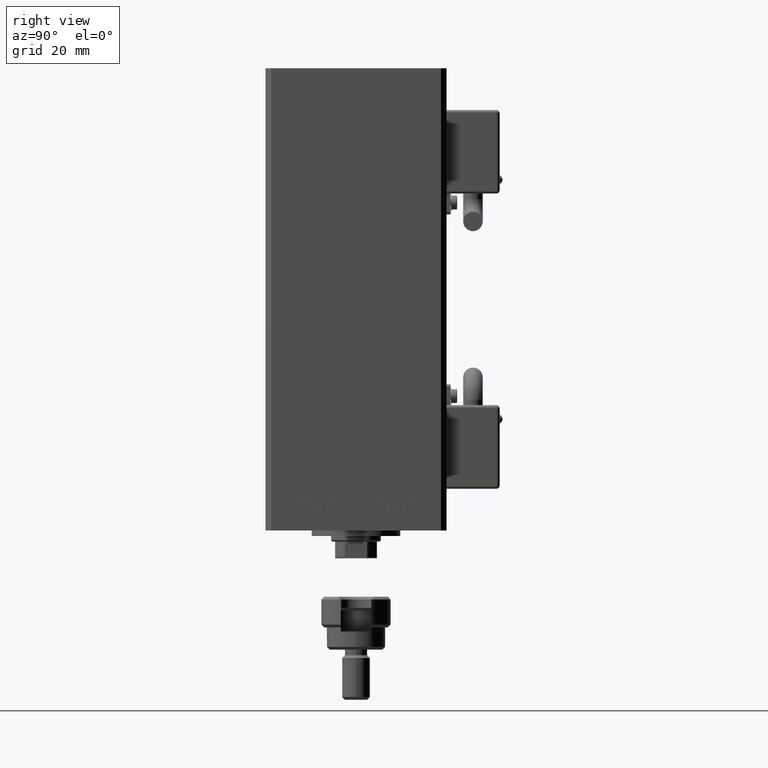
[diagram: clean part render]
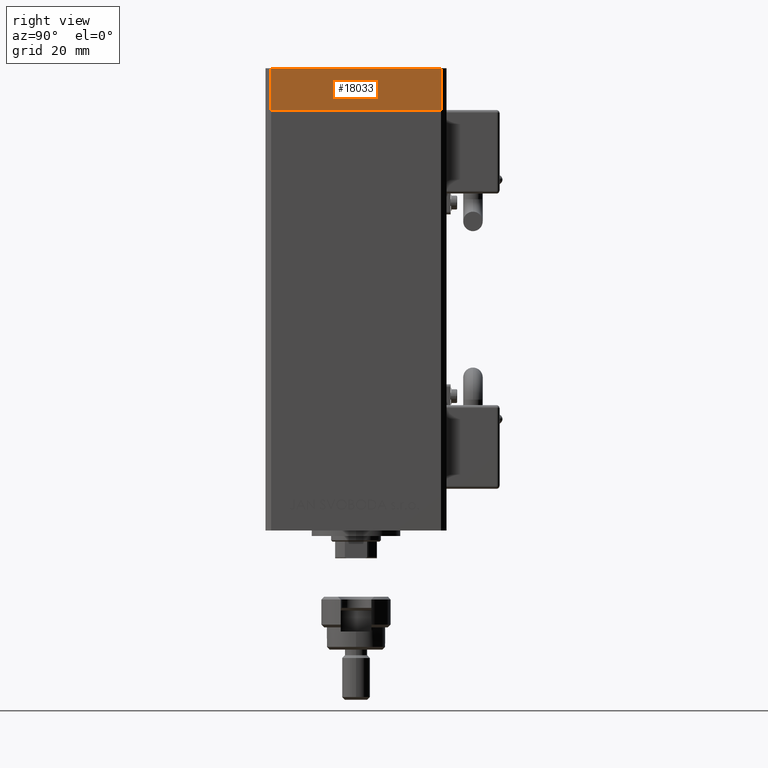
[diagram: same view with one face highlighted and labeled with its STEP entity id]
A machine part, right view. The second image highlights one B-rep face of the part: STEP entity #18033.
In plain terms, the highlighted planar face has unit normal (1, 0, 0).
Its self-contained STEP definition (entity closure, byte-faithful):
#913 = EDGE_CURVE ( 'NONE', #22626, #6738, #15562, .T. ) ;
#1342 = CARTESIAN_POINT ( 'NONE',  ( 37.50000000000001421, -30.50000000000000711, -15.00000000000000000 ) ) ;
#2000 = VECTOR ( 'NONE', #25358, 1000.000000000000000 ) ;
#3543 = VERTEX_POINT ( 'NONE', #5046 ) ;
#3774 = DIRECTION ( 'NONE',  ( 0.000000000000000000, 0.000000000000000000, 1.000000000000000000 ) ) ;
#4685 = AXIS2_PLACEMENT_3D ( 'NONE', #17022, #25193, #33341 ) ;
#4941 = ORIENTED_EDGE ( 'NONE', *, *, #32210, .T. ) ;
#5046 = CARTESIAN_POINT ( 'NONE',  ( 37.50000000000001421, -30.50000000000000711, -15.00000000000000000 ) ) ;
#5715 = LINE ( 'NONE', #21277, #2000 ) ;
#5753 = CARTESIAN_POINT ( 'NONE',  ( 37.49999999999992184, 30.50000000000001066, -15.00000000000000000 ) ) ;
#6738 = VERTEX_POINT ( 'NONE', #39645 ) ;
#6744 = EDGE_LOOP ( 'NONE', ( #35408, #22100, #21860, #4941 ) ) ;
#7689 = CARTESIAN_POINT ( 'NONE',  ( 37.50000000000001421, -30.50000000000000711, 0.000000000000000000 ) ) ;
#12852 = VECTOR ( 'NONE', #34554, 1000.000000000000000 ) ;
#15562 = LINE ( 'NONE', #39772, #20707 ) ;
#16586 = CARTESIAN_POINT ( 'NONE',  ( 37.50000000000001421, -30.50000000000000711, -15.00000000000000000 ) ) ;
#17022 = CARTESIAN_POINT ( 'NONE',  ( 37.50000000000001421, -30.50000000000000711, -15.00000000000000000 ) ) ;
#18033 = ADVANCED_FACE ( 'NONE', ( #45589 ), #50483, .T. ) ;
#20707 = VECTOR ( 'NONE', #52314, 1000.000000000000000 ) ;
#21277 = CARTESIAN_POINT ( 'NONE',  ( 37.49999999999992184, 30.50000000000001066, -15.00000000000000000 ) ) ;
#21860 = ORIENTED_EDGE ( 'NONE', *, *, #45400, .T. ) ;
#22100 = ORIENTED_EDGE ( 'NONE', *, *, #41120, .F. ) ;
#22626 = VERTEX_POINT ( 'NONE', #7689 ) ;
#23124 = VECTOR ( 'NONE', #3774, 1000.000000000000000 ) ;
#25193 = DIRECTION ( 'NONE',  ( 1.000000000000000000, 1.478780668045803018E-15, -0.000000000000000000 ) ) ;
#25358 = DIRECTION ( 'NONE',  ( 0.000000000000000000, 0.000000000000000000, 1.000000000000000000 ) ) ;
#32210 = EDGE_CURVE ( 'NONE', #39774, #6738, #5715, .T. ) ;
#33341 = DIRECTION ( 'NONE',  ( -1.478780668045803018E-15, 1.000000000000000000, 0.000000000000000000 ) ) ;
#34554 = DIRECTION ( 'NONE',  ( -1.478780668045802821E-15, 1.000000000000000000, 0.000000000000000000 ) ) ;
#35408 = ORIENTED_EDGE ( 'NONE', *, *, #913, .F. ) ;
#39645 = CARTESIAN_POINT ( 'NONE',  ( 37.49999999999992184, 30.50000000000001066, 0.000000000000000000 ) ) ;
#39772 = CARTESIAN_POINT ( 'NONE',  ( 37.50000000000001421, -30.50000000000000711, 0.000000000000000000 ) ) ;
#39774 = VERTEX_POINT ( 'NONE', #5753 ) ;
#41120 = EDGE_CURVE ( 'NONE', #3543, #22626, #49234, .T. ) ;
#45400 = EDGE_CURVE ( 'NONE', #3543, #39774, #49352, .T. ) ;
#45589 = FACE_OUTER_BOUND ( 'NONE', #6744, .T. ) ;
#49234 = LINE ( 'NONE', #16586, #23124 ) ;
#49352 = LINE ( 'NONE', #1342, #12852 ) ;
#50483 = PLANE ( 'NONE',  #4685 ) ;
#52314 = DIRECTION ( 'NONE',  ( -1.478780668045802821E-15, 1.000000000000000000, 0.000000000000000000 ) ) ;